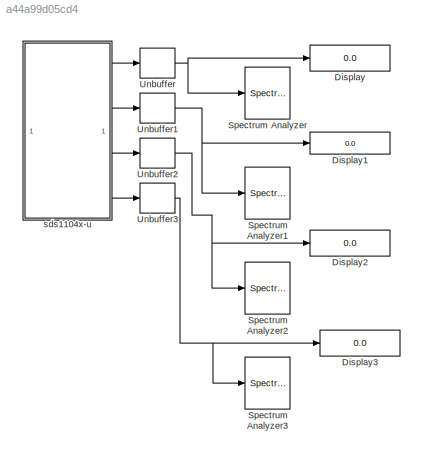
MODEL slx_a44a99d05cd4
KIND model
CONFIG AbsTol = auto
CONFIG EnableMultiTasking = off
CONFIG FixedStep = auto
CONFIG MaxStep = auto
CONFIG MinStep = auto
CONFIG RelTol = 1e-3
CONFIG SampleTimeConstraint = Unconstrained
CONFIG SolverName = VariableStepAuto
CONFIG StartTime = 0.0
CONFIG StopTime = inf
BLOCK [Display] Display
  Decimation = 1
BLOCK [Display] Display1
  Decimation = 1
BLOCK [Display] Display2
  Decimation = 1
BLOCK [Display] Display3
  Decimation = 1
BLOCK [SpectrumAnalyzer] Spectrum Analyzer
  DefaultConfigurationName = spbscopes.SpectrumAnalyzerBlockCfg
  FrequencyInputRBWFromPort = 0
  FrequencyInputRBWPort = 0
  FrequencySpan = Start and stop frequencies
  FrequencyVectorFromPort = 0
  FrequencyVectorPort = 0
  GraphicalSettings = {"GraphicalSettings":{"Style":{"BackgroundColor":[0.1568627450980392,0.1568627450980392,0.1568627450980392],"AxesColor":[0,0,0],"LabelsColor":[0.6862745098039216,0.6862745098039216,0.6862745098039216],"PreserveColors":false,"Visible":[true],"LineStyle":["-"],"LineColor":[[1,1,0.06666666666666667]],"LineWidth":[1.5],"Marker":["none"],"FontSize":"small"},"Cursors":{"Enabled":false,"XLocation":[2,8],...<+831ch>  <repeated x4 — deduplicated; at blocks: Spectrum Analyzer, Spectrum Analyzer1, Spectrum Analyzer2, Spectrum Analyzer3>
  IsFrequencyInputMode = 0
  PlotAsTwoSidedSpectrum = off
  SampleRate = 44.1e3
  SampleRateSource = Property
  ScopeFrameLocation = window
  ScopeSpecificationString = spbscopes.SpectrumAnalyzerBlockCfg('CurrentConfiguration', extmgr.ConfigurationSet(extmgr.Configuration('Core','General UI',true),extmgr.Configuration('Core','Source UI',true),extmgr.Configuration('Sources','WiredSimulink',true),extmgr.Configuration('Visuals','Spectrum',true,'AxesProperties',struct('Color',{[0 0 0],[0 0 0]},'XColor',{[0.686274509803922 0.686274509803922 0.686274509803922],[0.68627...<+1720ch>  <repeated x4 — deduplicated; at blocks: Spectrum Analyzer, Spectrum Analyzer1, Spectrum Analyzer2, Spectrum Analyzer3>
  StartFrequency = 20
  StopFrequency = 20e3
  Visible = on
  WasSavedAsWebScope = on
  WindowPosition = [1692.000000,114.000000,800.000000,500.000000,]
  YLimits = [-14.60311564,88.0301966]
BLOCK [SpectrumAnalyzer] Spectrum Analyzer1
  DefaultConfigurationName = spbscopes.SpectrumAnalyzerBlockCfg
  FrequencyInputRBWFromPort = 0
  FrequencyInputRBWPort = 0
  FrequencySpan = Start and stop frequencies
  FrequencyVectorFromPort = 0
  FrequencyVectorPort = 0
  IsFrequencyInputMode = 0
  PlotAsTwoSidedSpectrum = off
  SampleRate = 44.1e3
  SampleRateSource = Property
  ScopeFrameLocation = window
  StartFrequency = 20
  StopFrequency = 20e3
  WasSavedAsWebScope = on
  WindowPosition = [1692.000000,114.000000,800.000000,500.000000,]
  YLimits = [-14.60311564,88.0301966]
BLOCK [SpectrumAnalyzer] Spectrum Analyzer2
  DefaultConfigurationName = spbscopes.SpectrumAnalyzerBlockCfg
  FrequencyInputRBWFromPort = 0
  FrequencyInputRBWPort = 0
  FrequencySpan = Start and stop frequencies
  FrequencyVectorFromPort = 0
  FrequencyVectorPort = 0
  IsFrequencyInputMode = 0
  PlotAsTwoSidedSpectrum = off
  SampleRate = 44.1e3
  SampleRateSource = Property
  ScopeFrameLocation = window
  StartFrequency = 20
  StopFrequency = 20e3
  WasSavedAsWebScope = on
  WindowPosition = [1692.000000,114.000000,800.000000,500.000000,]
  YLimits = [-14.60311564,88.0301966]
BLOCK [SpectrumAnalyzer] Spectrum Analyzer3
  DefaultConfigurationName = spbscopes.SpectrumAnalyzerBlockCfg
  FrequencyInputRBWFromPort = 0
  FrequencyInputRBWPort = 0
  FrequencySpan = Start and stop frequencies
  FrequencyVectorFromPort = 0
  FrequencyVectorPort = 0
  IsFrequencyInputMode = 0
  PlotAsTwoSidedSpectrum = off
  SampleRate = 44.1e3
  SampleRateSource = Property
  ScopeFrameLocation = window
  StartFrequency = 20
  StopFrequency = 20e3
  WasSavedAsWebScope = on
  WindowPosition = [1692.000000,114.000000,800.000000,500.000000,]
  YLimits = [-14.60311564,88.0301966]
BLOCK [Unbuffer] Unbuffer
BLOCK [Unbuffer] Unbuffer1
BLOCK [Unbuffer] Unbuffer2
BLOCK [Unbuffer] Unbuffer3
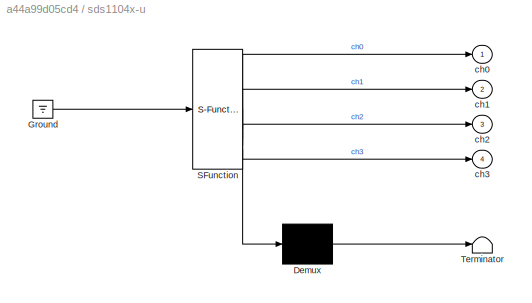
BLOCK [SubSystem] sds1104x-u
  ErrorFcn = Stateflow.Translate.translate
  LibrarySourceBlock = simulink/User-Defined\nFunctions/MATLAB Function
  PermitHierarchicalResolution = ExplicitOnly
  SFBlockType = MATLAB Function
  SystemSampleTime = 8192/500000
  TreatAsAtomicUnit = on
BLOCK [Demux] sds1104x-u/ Demux 
  Outputs = 1
BLOCK [Ground] sds1104x-u/ Ground 
BLOCK [S-Function] sds1104x-u/ SFunction 
  EnableBusSupport = on
  FunctionName = sf_sfun
  PortCounts = [1 5]
  SFcnIsStateOwnerBlock = off
  SFunctionDeploymentMode = off
  Tag = Stateflow S-Function 2
BLOCK [Terminator] sds1104x-u/ Terminator 
BLOCK [Outport] sds1104x-u/ch0
BLOCK [Outport] sds1104x-u/ch1
  Port = 2
BLOCK [Outport] sds1104x-u/ch2
  Port = 3
BLOCK [Outport] sds1104x-u/ch3
  Port = 4
NET Unbuffer1:1 -> Display1:1, Spectrum Analyzer1:1
NET Unbuffer2:1 -> Display2:1, Spectrum Analyzer2:1
NET Unbuffer3:1 -> Display3:1, Spectrum Analyzer3:1
NET Unbuffer:1 -> Display:1, Spectrum Analyzer:1
LINE sds1104x-u:1 -> Unbuffer:1
LINE sds1104x-u:2 -> Unbuffer1:1
LINE sds1104x-u:3 -> Unbuffer2:1
LINE sds1104x-u:4 -> Unbuffer3:1
note: NET lines group one-source signal fan-out (src -> all destinations, sorted); 1:1 wires keep LINE
CHART sds1104x-u states=1 transitions=1
  STATE_LABEL 'eML_blk_kernel()'
  STATE_LABEL "SCRIPT:\n% this is for simulink matlab module\nfunction [ch0,ch1,ch2,ch3] = read_file_from_oscilloscope_receiver()\n    persistent buf\n    N = 7000000;\n    if isempty(buf)\n        buf = zeros(4*N,1,'uint8');\n    end\n    % Call helper function to get latest data\n    buf = read_file_helper(N);\n    ch0 = buf(1:N);\n    ch1 = buf(N+1:2*N);\n    ch2 = buf(2*N+1:3*N);\n    ch3 = buf(3*N+1:4*N);\nend\n"
CHART  states=0 transitions=0
